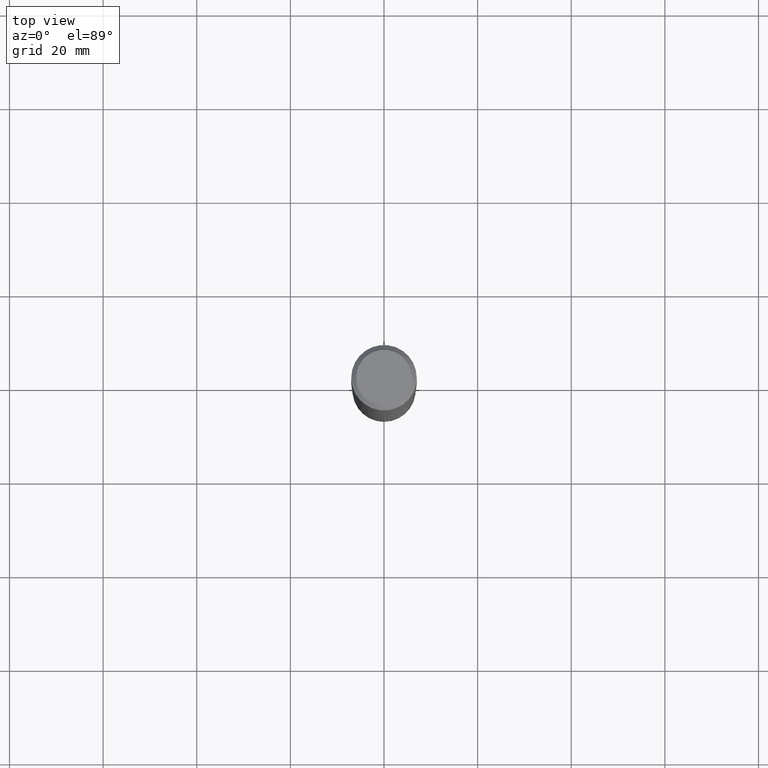
[diagram: clean part render]
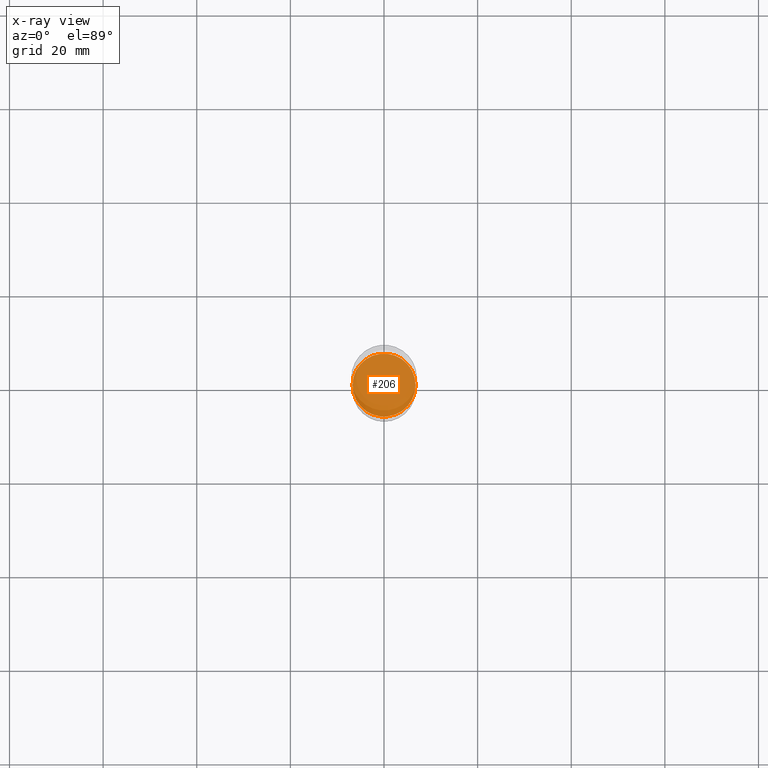
[diagram: x-ray — body ghosted, one internal face saturated and labeled with its STEP entity id]
A machine part, top view, then the same camera in x-ray: the body is ghosted and one INTERNAL B-rep face — a face not visible from any outside direction — is saturated and labeled: STEP entity #206.
In plain terms, the highlighted planar face has unit normal (-0, 0, 1).
Its self-contained STEP definition (entity closure, byte-faithful):
#23 = EDGE_CURVE ( 'NONE', #175, #341, #335, .T. ) ;
#25 = DIRECTION ( 'NONE',  ( 1.000000000000000000, -6.982962677686265922E-15, 4.876176775795935793E-29 ) ) ;
#35 = DIRECTION ( 'NONE',  ( -2.445468806185136597E-29, 3.491481338843145583E-15, 1.000000000000000000 ) ) ;
#40 = EDGE_CURVE ( 'NONE', #341, #175, #183, .T. ) ;
#42 = DIRECTION ( 'NONE',  ( -2.445468806185136597E-29, 3.491481338843145583E-15, 1.000000000000000000 ) ) ;
#81 = DIRECTION ( 'NONE',  ( 1.000000000000000000, -6.982962677686265922E-15, 0.000000000000000000 ) ) ;
#89 = CARTESIAN_POINT ( 'NONE',  ( -0.2651000000000000023, -1.082758212758929425E-14, -3.641399999999999970 ) ) ;
#144 = ORIENTED_EDGE ( 'NONE', *, *, #23, .F. ) ;
#166 = CARTESIAN_POINT ( 'NONE',  ( 8.904930110842557101E-29, -1.271388014726343106E-14, -3.641399999999999970 ) ) ;
#175 = VERTEX_POINT ( 'NONE', #242 ) ;
#183 = CIRCLE ( 'NONE', #221, 0.2651000000000000023 ) ;
#206 = ADVANCED_FACE ( 'NONE', ( #308 ), #340, .F. ) ;
#221 = AXIS2_PLACEMENT_3D ( 'NONE', #438, #35, #81 ) ;
#242 = CARTESIAN_POINT ( 'NONE',  ( 0.2651000000000000023, -1.456506355311805971E-14, -3.641399999999999970 ) ) ;
#254 = EDGE_LOOP ( 'NONE', ( #144, #287 ) ) ;
#267 = DIRECTION ( 'NONE',  ( 1.000000000000000000, -6.982962677686265922E-15, 0.000000000000000000 ) ) ;
#287 = ORIENTED_EDGE ( 'NONE', *, *, #40, .F. ) ;
#308 = FACE_OUTER_BOUND ( 'NONE', #254, .T. ) ;
#335 = CIRCLE ( 'NONE', #386, 0.2651000000000000023 ) ;
#340 = PLANE ( 'NONE',  #342 ) ;
#341 = VERTEX_POINT ( 'NONE', #89 ) ;
#342 = AXIS2_PLACEMENT_3D ( 'NONE', #166, #348, #25 ) ;
#348 = DIRECTION ( 'NONE',  ( -2.438088387897960049E-29, 3.491481338843145188E-15, 1.000000000000000000 ) ) ;
#386 = AXIS2_PLACEMENT_3D ( 'NONE', #411, #42, #267 ) ;
#411 = CARTESIAN_POINT ( 'NONE',  ( 8.904930110842557101E-29, -1.271388014726343106E-14, -3.641399999999999970 ) ) ;
#438 = CARTESIAN_POINT ( 'NONE',  ( 8.904930110842557101E-29, -1.271388014726343106E-14, -3.641399999999999970 ) ) ;